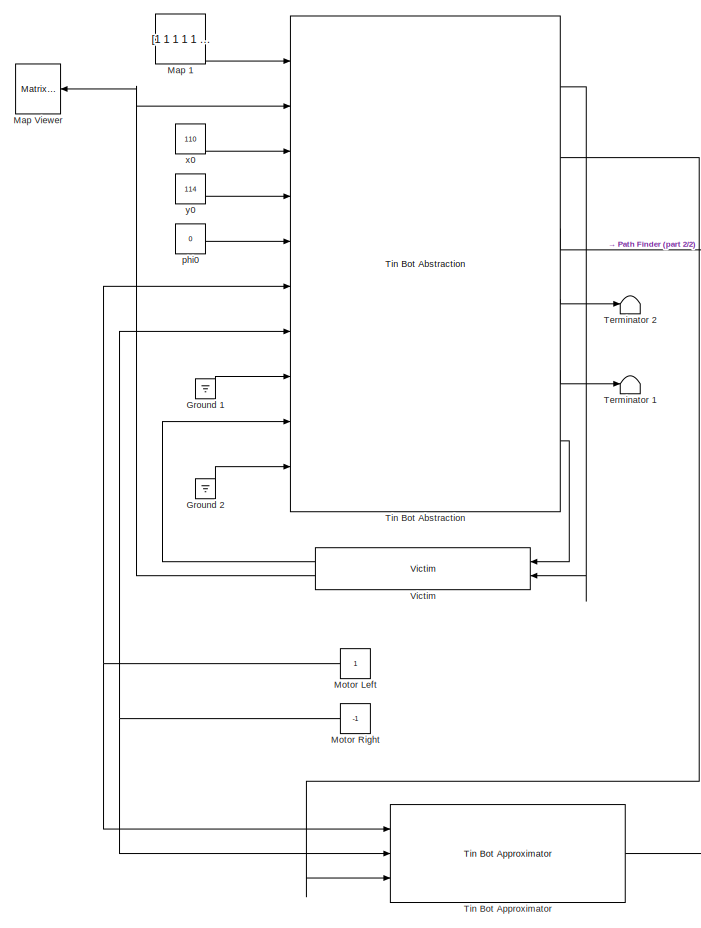
[diagram: root canvas - part 1/2, left side, full height]
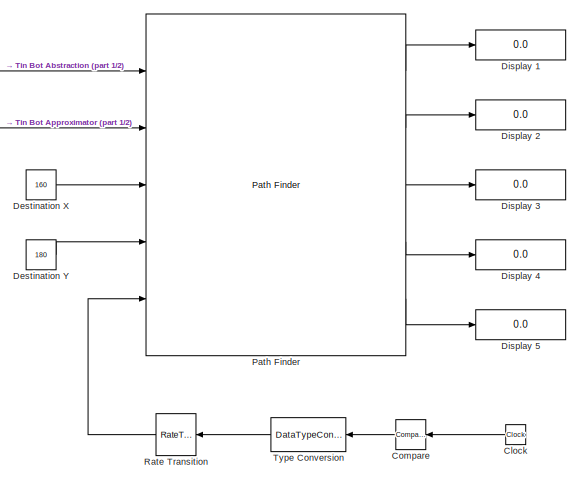
[diagram: root canvas - part 2/2, middle right region]
MODEL slx_5682cd01d5fd
KIND model
CONFIG AbsTol = auto
CONFIG FixedStep = 0.01
CONFIG MaxStep = 0.001
CONFIG MinStep = auto
CONFIG RelTol = 1e-3
CONFIG SampleTimeConstraint = Unconstrained
CONFIG Solver = FixedStepAuto
CONFIG SolverMode = Auto
CONFIG SolverName = FixedStepAuto
CONFIG StartTime = 0.0
CONFIG StopTime = 5
BLOCK [Clock] Clock
BLOCK [Reference] Compare  REF=simulink/Logic and Bit
Operations/Compare
To Constant
  Ports = [1, 1]
  SourceBlock = simulink/Logic and Bit\nOperations/Compare\nTo Constant
  SourceType = Compare To Constant
BLOCK [Constant] Destination X
  Value = 160
BLOCK [Constant] Destination Y
  Value = 180
BLOCK [Display] Display 1
  Decimation = 1
  Ports = [1]
BLOCK [Display] Display 2
  Decimation = 1
  Ports = [1]
BLOCK [Display] Display 3
  Decimation = 1
  Ports = [1]
BLOCK [Display] Display 4
  Decimation = 1
  Ports = [1]
BLOCK [Display] Display 5
  Decimation = 1
  Ports = [1]
BLOCK [Ground] Ground 1
BLOCK [Ground] Ground 2
BLOCK [Constant] Map 1
  Value = [1 1 1 1 1 1 1 1 1 1 1 1 1 1 1 1 1 1 1 1 1 1 1 1 1 1 1 1 1 1 1 1 1 1 1 1 1 1 1 1 1 1 1 1 1 1 1 1 1 1 1 1 1 1 1 1 1 1 1 1 1 1 1 1 1 1 1 1 1 1 1 1 1 1 1 1 1 1 1 1 1 1 1 1 1 1 1 1 1 1 1 1 1 1 1 1 1 1 1 1 1 1 1 1 1 1 1 1 1 1 1 1 1 1 1 1 1 1 1 1 1 1 1 1 1 1 1 1 1 1 1 1 1 1 1 1 1 1 1 1 1 1 1 1 1 1 1 1 1 1 1 1 1 1 1 1 1 1 1 1 1 1 1 1 1 1 1 1 1 1 1 1 1 1 1 1 1 1 1 1 1 1 1 1 1 1 1 1 1 1 1 1 1 1 1 1 1 1 1 1...<+79601ch>
BLOCK [Reference] Map Viewer  REF=dspsnks4/Matrix
Viewer
  Ports = [1]
  SourceBlock = dspsnks4/Matrix\nViewer
  SourceType = Matrix Viewer
BLOCK [Constant] Motor Left
BLOCK [Constant] Motor Right
  Value = -1
BLOCK [Reference] Path Finder  REF=tinbot/Path Finder  (lib defined in slx_3c5c153e9850, slx_5b2796442827, +1 more)
  Ports = [5, 5]
  SourceBlock = tinbot/Path Finder
BLOCK [RateTransition] Rate Transition
BLOCK [Terminator] Terminator 1
BLOCK [Terminator] Terminator 2
BLOCK [Reference] Tin Bot Abstraction  REF=tinbot/Tin Bot Abstraction  (lib defined in slx_3c5c153e9850, slx_5b2796442827, +1 more)
  Ports = [10, 6]
  SourceBlock = tinbot/Tin Bot Abstraction
BLOCK [Reference] Tin Bot Approximator  REF=tinbot/Tin Bot Approximator  (lib defined in slx_3c5c153e9850, slx_5b2796442827, +1 more)
  Ports = [3, 1]
  SourceBlock = tinbot/Tin Bot Approximator
BLOCK [DataTypeConversion] Type Conversion
  OutDataTypeStr = double
  RndMeth = Floor
  SaturateOnIntegerOverflow = off
BLOCK [Reference] Victim  REF=tinbot/Victim  (lib defined in slx_3c5c153e9850, slx_5b2796442827, +1 more)
  Ports = [2, 2]
  SourceBlock = tinbot/Victim
BLOCK [Constant] phi0
  Value = 0
BLOCK [Constant] x0
  Value = 110
BLOCK [Constant] y0
  Value = 114
LINE Clock:1 -> Compare:1
LINE Compare:1 -> Type Conversion:1
LINE Destination X:1 -> Path Finder:3
LINE Destination Y:1 -> Path Finder:4
LINE Ground 1:1 -> Tin Bot Abstraction:8
LINE Ground 2:1 -> Tin Bot Abstraction:10
LINE Map 1:1 -> Tin Bot Abstraction:1
NET Motor Left:1 -> Tin Bot Abstraction:6, Tin Bot Approximator:1
NET Motor Right:1 -> Tin Bot Abstraction:7, Tin Bot Approximator:2
LINE Path Finder:1 -> Display 1:1
LINE Path Finder:2 -> Display 2:1
LINE Path Finder:3 -> Display 3:1
LINE Path Finder:4 -> Display 4:1
LINE Path Finder:5 -> Display 5:1
LINE Rate Transition:1 -> Path Finder:5
LINE Tin Bot Abstraction:1 -> Victim:2
LINE Tin Bot Abstraction:2 -> Tin Bot Approximator:3
LINE Tin Bot Abstraction:3 -> Path Finder:1
LINE Tin Bot Abstraction:4 -> Terminator 2:1
LINE Tin Bot Abstraction:5 -> Terminator 1:1
LINE Tin Bot Abstraction:6 -> Victim:1
LINE Tin Bot Approximator:1 -> Path Finder:2
LINE Type Conversion:1 -> Rate Transition:1
LINE Victim:1 -> Tin Bot Abstraction:9
NET Victim:2 -> Map Viewer:1, Tin Bot Abstraction:2
LINE phi0:1 -> Tin Bot Abstraction:5
LINE x0:1 -> Tin Bot Abstraction:3
LINE y0:1 -> Tin Bot Abstraction:4
note: NET lines group one-source signal fan-out (src -> all destinations, sorted); 1:1 wires keep LINE
